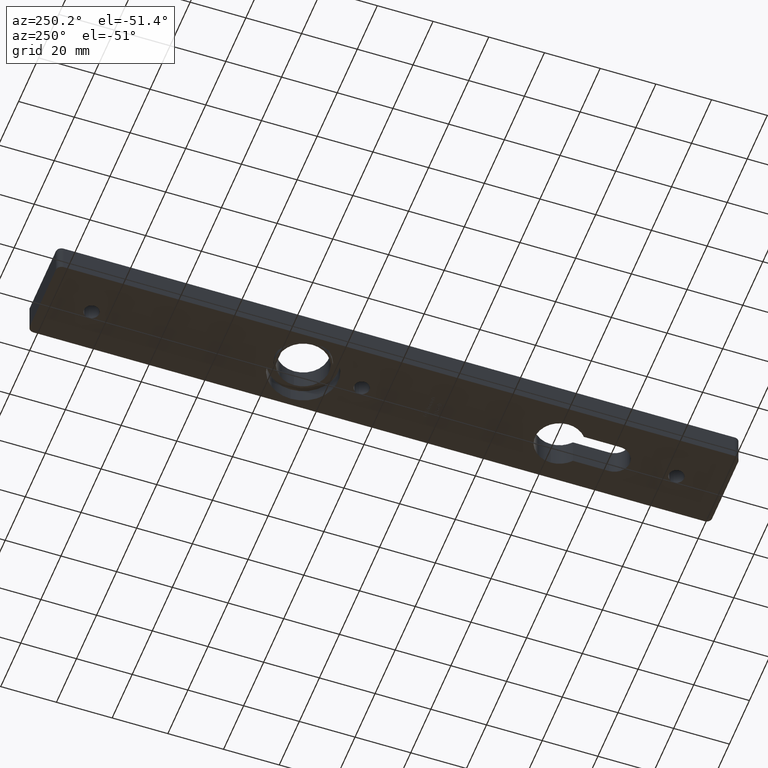
[diagram: clean part render]
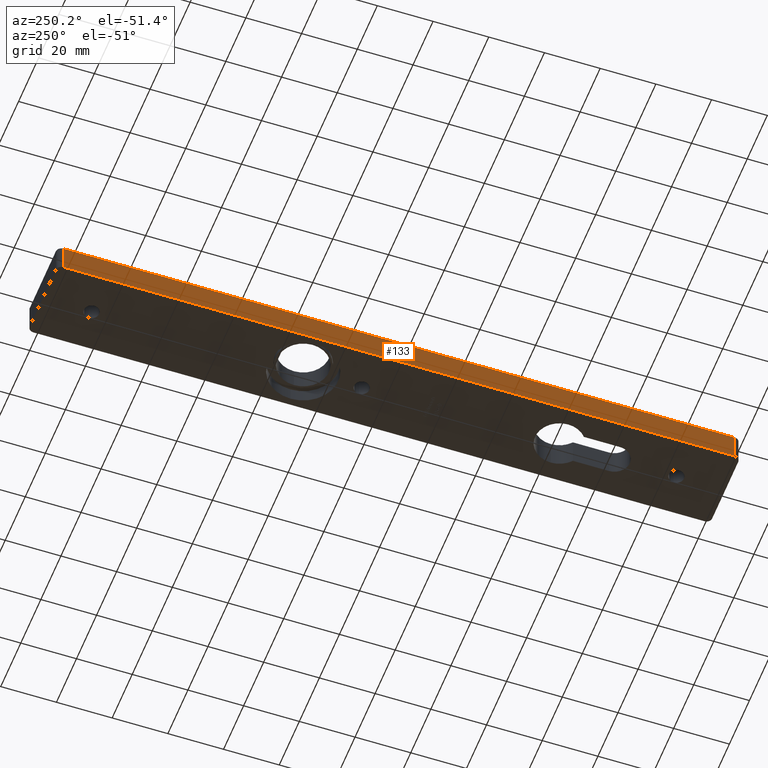
[diagram: same view with one face highlighted and labeled with its STEP entity id]
A machine part, auxiliary view. The second image highlights one B-rep face of the part: STEP entity #133.
In plain terms, the highlighted planar face has unit normal (1, 0, 0).
Its self-contained STEP definition (entity closure, byte-faithful):
#133 = ADVANCED_FACE ( 'NONE', ( #5574 ), #8227, .F. ) ;
#498 = ORIENTED_EDGE ( 'NONE', *, *, #4695, .T. ) ;
#610 = VERTEX_POINT ( 'NONE', #4629 ) ;
#1283 = EDGE_CURVE ( 'NONE', #9211, #8193, #1614, .T. ) ;
#1593 = DIRECTION ( 'NONE',  ( 0.000000000000000000, 0.000000000000000000, -1.000000000000000000 ) ) ;
#1614 = LINE ( 'NONE', #3518, #5424 ) ;
#1795 = CARTESIAN_POINT ( 'NONE',  ( -15.00000000000002487, 120.5000000000000000, 0.000000000000000000 ) ) ;
#1886 = LINE ( 'NONE', #10755, #7801 ) ;
#2685 = EDGE_LOOP ( 'NONE', ( #9166, #498, #9154, #2932 ) ) ;
#2844 = CARTESIAN_POINT ( 'NONE',  ( -15.00000000000002487, -120.5000000000000000, 10.00000000000000000 ) ) ;
#2932 = ORIENTED_EDGE ( 'NONE', *, *, #8221, .T. ) ;
#3518 = CARTESIAN_POINT ( 'NONE',  ( -15.00000000000002487, 122.5000000000000000, 0.000000000000000000 ) ) ;
#4114 = DIRECTION ( 'NONE',  ( 0.000000000000000000, -1.000000000000000000, 0.000000000000000000 ) ) ;
#4629 = CARTESIAN_POINT ( 'NONE',  ( -15.00000000000002487, 120.5000000000000000, 10.00000000000000000 ) ) ;
#4695 = EDGE_CURVE ( 'NONE', #8193, #6387, #6891, .T. ) ;
#4758 = CARTESIAN_POINT ( 'NONE',  ( -15.00000000000002487, 122.5000000000000000, 10.00000000000000000 ) ) ;
#5214 = DIRECTION ( 'NONE',  ( 0.000000000000000000, -1.000000000000000000, 0.000000000000000000 ) ) ;
#5424 = VECTOR ( 'NONE', #5214, 1000.000000000000000 ) ;
#5565 = DIRECTION ( 'NONE',  ( -0.000000000000000000, -0.000000000000000000, 1.000000000000000000 ) ) ;
#5574 = FACE_OUTER_BOUND ( 'NONE', #2685, .T. ) ;
#6387 = VERTEX_POINT ( 'NONE', #2844 ) ;
#6582 = CARTESIAN_POINT ( 'NONE',  ( -15.00000000000002487, -120.5000000000000000, 0.000000000000000000 ) ) ;
#6760 = VECTOR ( 'NONE', #5565, 1000.000000000000000 ) ;
#6891 = LINE ( 'NONE', #10594, #6760 ) ;
#7040 = EDGE_CURVE ( 'NONE', #610, #6387, #1886, .T. ) ;
#7488 = CARTESIAN_POINT ( 'NONE',  ( -15.00000000000002487, 120.5000000000000000, 10.00000000000000000 ) ) ;
#7801 = VECTOR ( 'NONE', #4114, 1000.000000000000000 ) ;
#8113 = DIRECTION ( 'NONE',  ( -0.000000000000000000, 0.000000000000000000, -1.000000000000000000 ) ) ;
#8193 = VERTEX_POINT ( 'NONE', #6582 ) ;
#8221 = EDGE_CURVE ( 'NONE', #610, #9211, #9504, .T. ) ;
#8227 = PLANE ( 'NONE',  #9319 ) ;
#9154 = ORIENTED_EDGE ( 'NONE', *, *, #7040, .F. ) ;
#9166 = ORIENTED_EDGE ( 'NONE', *, *, #1283, .T. ) ;
#9211 = VERTEX_POINT ( 'NONE', #1795 ) ;
#9319 = AXIS2_PLACEMENT_3D ( 'NONE', #4758, #9855, #8113 ) ;
#9504 = LINE ( 'NONE', #7488, #9634 ) ;
#9634 = VECTOR ( 'NONE', #1593, 1000.000000000000000 ) ;
#9855 = DIRECTION ( 'NONE',  ( 1.000000000000000000, 0.000000000000000000, -0.000000000000000000 ) ) ;
#10594 = CARTESIAN_POINT ( 'NONE',  ( -15.00000000000002487, -120.5000000000000000, 10.00000000000000000 ) ) ;
#10755 = CARTESIAN_POINT ( 'NONE',  ( -15.00000000000002487, 122.5000000000000000, 10.00000000000000000 ) ) ;